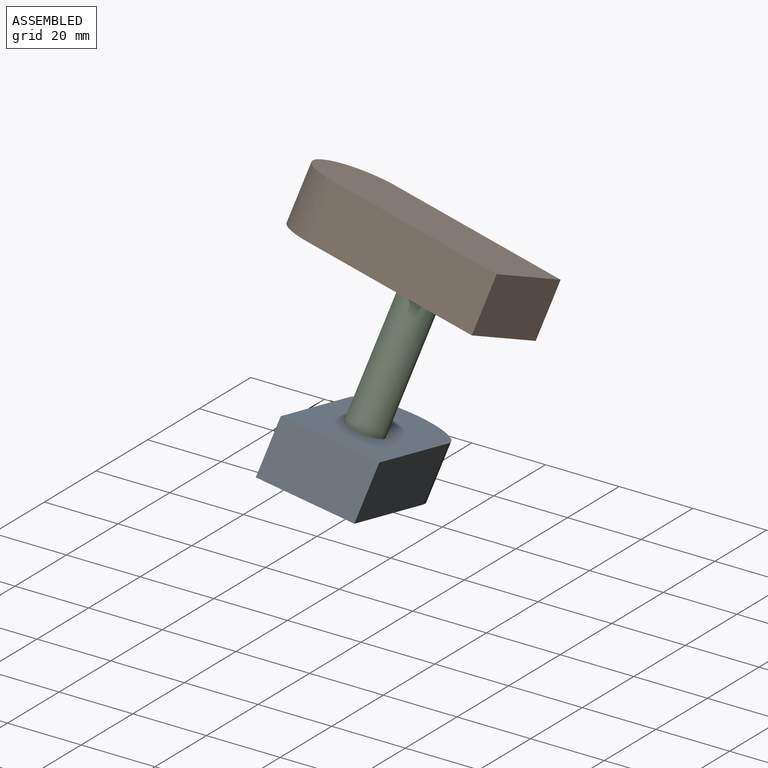
[diagram: assembled view]
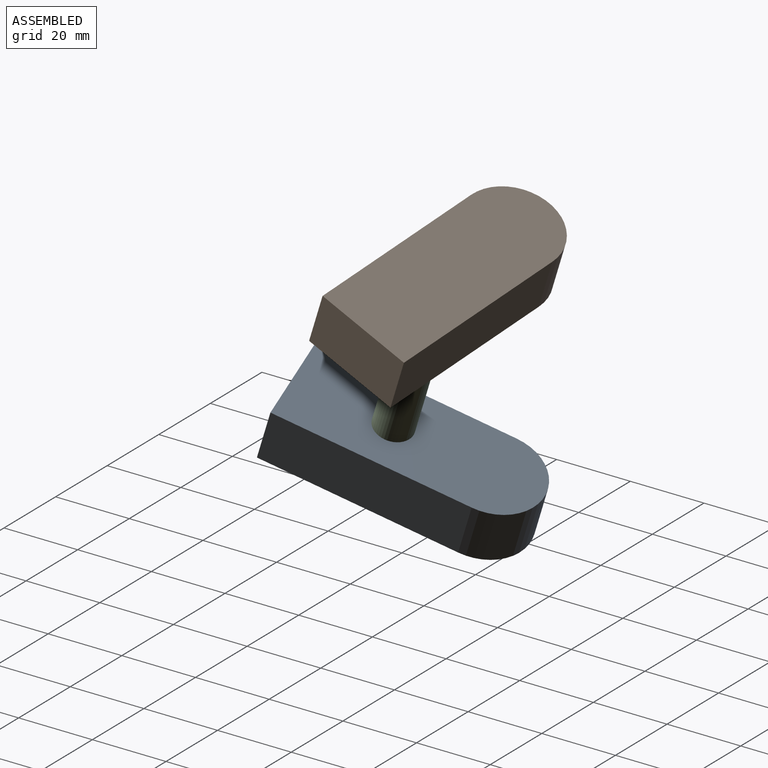
[diagram: assembled view, second angle]
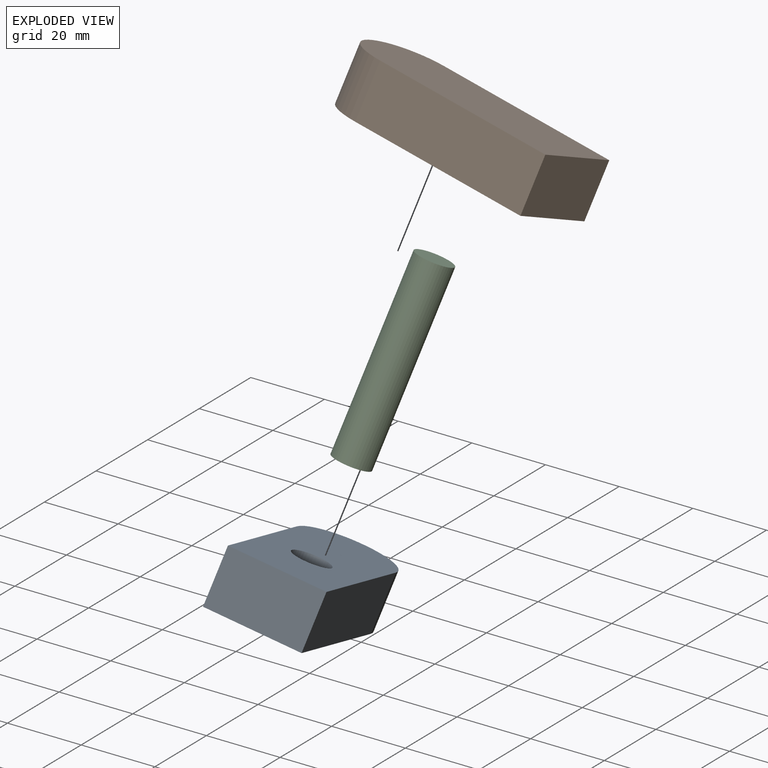
[diagram: exploded view]
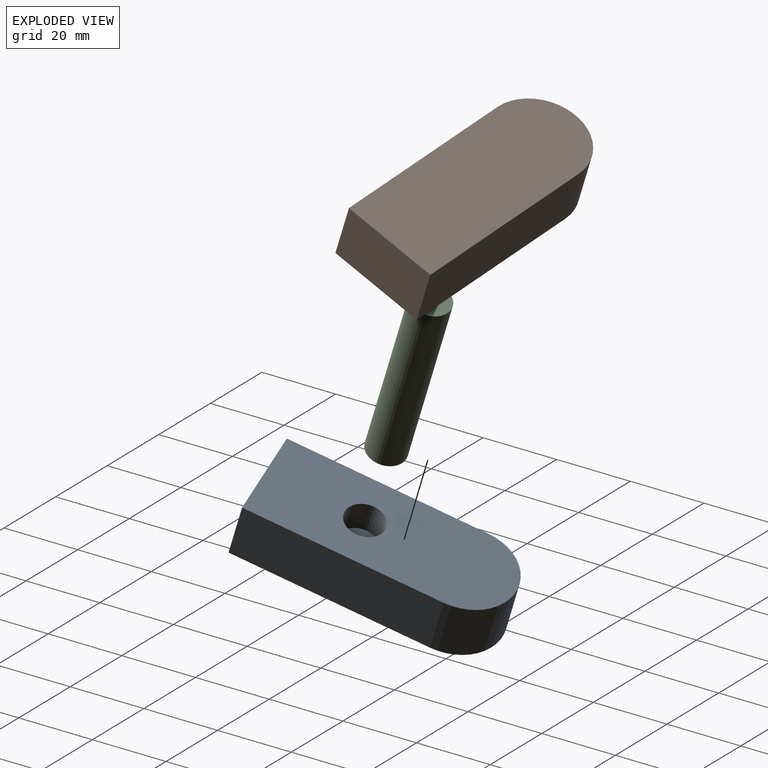
[diagram: exploded view, second angle]
ASSEMBLY  parts=3 mates=2
PART A: 8 faces, bbox 62.5x15x25 mm
  f0: plane 50x15mm, normal (0,0,1), area 750mm2, adj f1,f3,f4,f5
  f1: plane 25x15mm, normal (-1,0,0), area 375mm2, adj f0,f2,f4,f5
  f2: plane 50x15mm, normal (0,0,-1), area 750mm2, adj f1,f3,f4,f5
  f3: cylinder r=12.5mm len=25mm, axis (0,1,0), area 589mm2, adj f0,f2,f4,f5
  f4: plane 62.5x25mm, normal (0,-1,0), area 1416.9mm2, adj f0,f1,f2,f3,f6
  f5: plane 62.5x25mm, normal (0,1,0), area 1495.4mm2, adj f0,f1,f2,f3
  f6: cylinder r=5mm len=10mm, axis (0,-1,0), area 251.3mm2, adj f4,f7
  f7: plane 10x10mm, normal (0,-1,0), area 78.5mm2, adj f6
PART B: same geometry as A
PART C: 3 faces, bbox 10x50x10 mm
  f0: cylinder r=5mm len=50mm, axis (0,1,0), area 1570.8mm2, adj f1,f2
  f1: plane 10x10mm, normal (0,1,0), area 78.5mm2, adj f0
  f2: plane 10x10mm, normal (0,-1,0), area 78.5mm2, adj f0
PLACE A rot(axis=(-0.5,-0.43,0.75),133.2deg) t=(44.5,25.22,17.01)mm
PLACE B rot(axis=(-0.09,-0.83,-0.55),176.4deg) t=(56.54,49.29,75.08)mm
PLACE C rot(axis=(0.41,-0.71,-0.57),105.1deg) t=(55.23,46.66,68.73)mm
MATE fastened C.f0 <-> B.f6  axis (0.19,0.38,0.91) through (55.23,46.66,68.73)mm
MATE revolute C.f0 <-> A.f6  axis (0.19,0.38,0.91) through (45.82,27.86,23.36)mm
